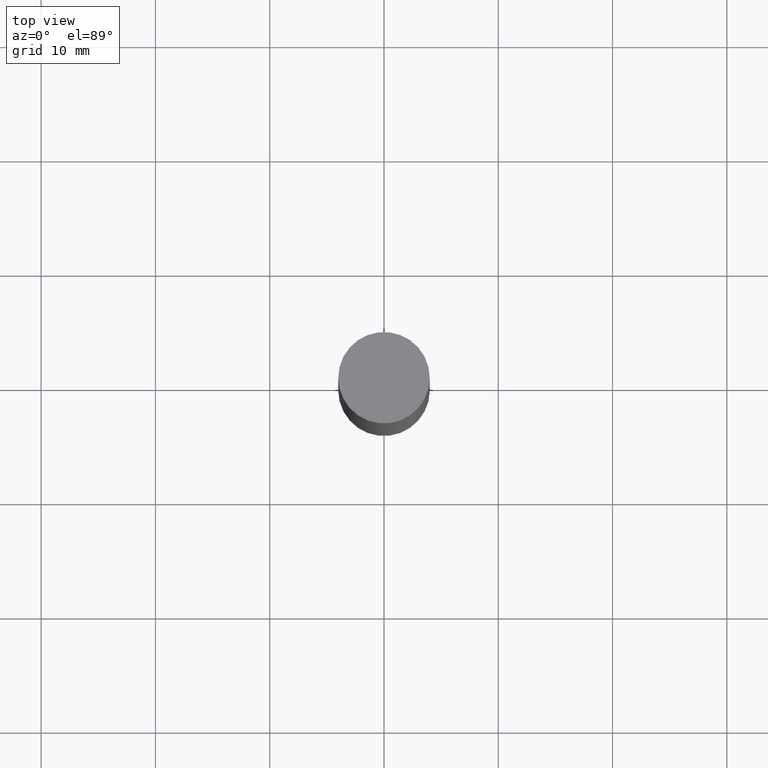
[diagram: clean part render]
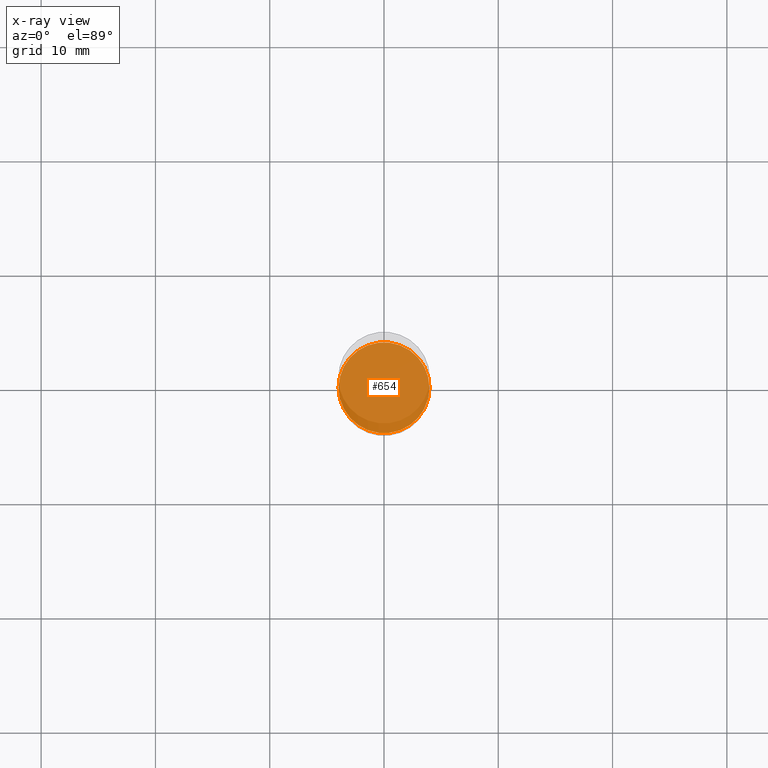
[diagram: x-ray — body ghosted, one internal face saturated and labeled with its STEP entity id]
A machine part, top view, then the same camera in x-ray: the body is ghosted and one INTERNAL B-rep face — a face not visible from any outside direction — is saturated and labeled: STEP entity #654.
In plain terms, the highlighted planar face has unit normal (-0, 0, 1).
Its self-contained STEP definition (entity closure, byte-faithful):
#5 = DIRECTION ( 'NONE',  ( 1.000000000000000000, -6.982962677686265922E-15, 4.876176775795935793E-29 ) ) ;
#37 = DIRECTION ( 'NONE',  ( 1.000000000000000000, -6.982962677686267499E-15, 0.000000000000000000 ) ) ;
#38 = CARTESIAN_POINT ( 'NONE',  ( 4.910256815939136991E-29, -7.010545380263154077E-15, -2.007900000000000240 ) ) ;
#50 = PLANE ( 'NONE',  #224 ) ;
#56 = DIRECTION ( 'NONE',  ( -2.445468806185136597E-29, 3.491481338843145583E-15, 1.000000000000000000 ) ) ;
#96 = VERTEX_POINT ( 'NONE', #629 ) ;
#102 = CARTESIAN_POINT ( 'NONE',  ( 4.910256815939136430E-29, -7.010545380263152499E-15, -2.007900000000000240 ) ) ;
#162 = FACE_OUTER_BOUND ( 'NONE', #271, .T. ) ;
#169 = AXIS2_PLACEMENT_3D ( 'NONE', #38, #415, #37 ) ;
#202 = CARTESIAN_POINT ( 'NONE',  ( 0.1565000000000000002, -8.103379039321054754E-15, -2.007900000000000240 ) ) ;
#224 = AXIS2_PLACEMENT_3D ( 'NONE', #102, #584, #5 ) ;
#226 = ORIENTED_EDGE ( 'NONE', *, *, #278, .F. ) ;
#265 = AXIS2_PLACEMENT_3D ( 'NONE', #337, #56, #273 ) ;
#271 = EDGE_LOOP ( 'NONE', ( #582, #226 ) ) ;
#273 = DIRECTION ( 'NONE',  ( 1.000000000000000000, -6.982962677686267499E-15, 0.000000000000000000 ) ) ;
#278 = EDGE_CURVE ( 'NONE', #96, #473, #333, .T. ) ;
#333 = CIRCLE ( 'NONE', #265, 0.1565000000000000002 ) ;
#337 = CARTESIAN_POINT ( 'NONE',  ( 4.910256815939136991E-29, -7.010545380263154077E-15, -2.007900000000000240 ) ) ;
#415 = DIRECTION ( 'NONE',  ( -2.445468806185136597E-29, 3.491481338843145583E-15, 1.000000000000000000 ) ) ;
#473 = VERTEX_POINT ( 'NONE', #202 ) ;
#482 = CIRCLE ( 'NONE', #169, 0.1565000000000000002 ) ;
#496 = EDGE_CURVE ( 'NONE', #473, #96, #482, .T. ) ;
#582 = ORIENTED_EDGE ( 'NONE', *, *, #496, .F. ) ;
#584 = DIRECTION ( 'NONE',  ( -2.438088387897960049E-29, 3.491481338843145188E-15, 1.000000000000000000 ) ) ;
#629 = CARTESIAN_POINT ( 'NONE',  ( -0.1565000000000000002, -5.893247544450374291E-15, -2.007900000000000240 ) ) ;
#654 = ADVANCED_FACE ( 'NONE', ( #162 ), #50, .F. ) ;